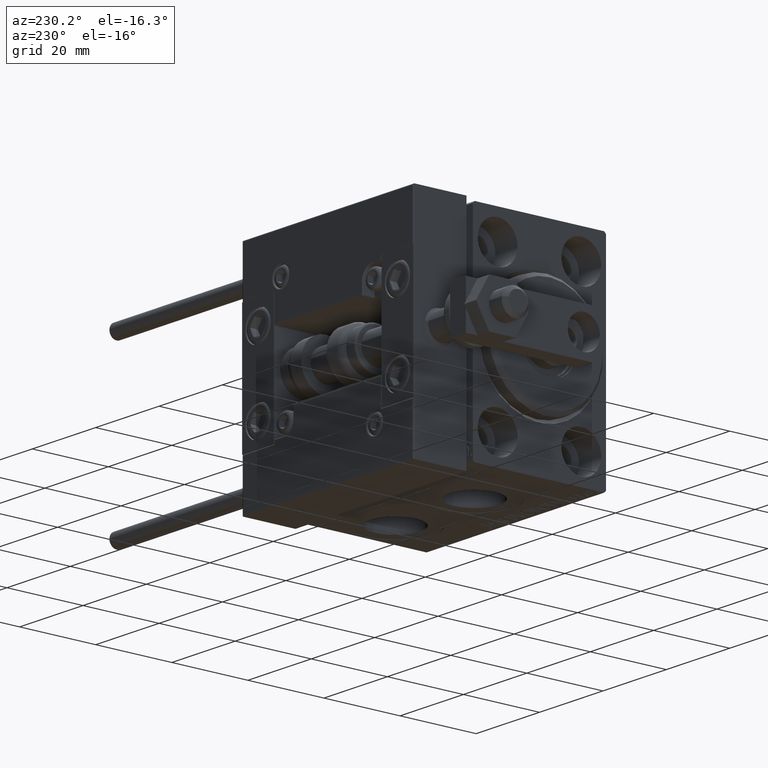
[diagram: clean part render]
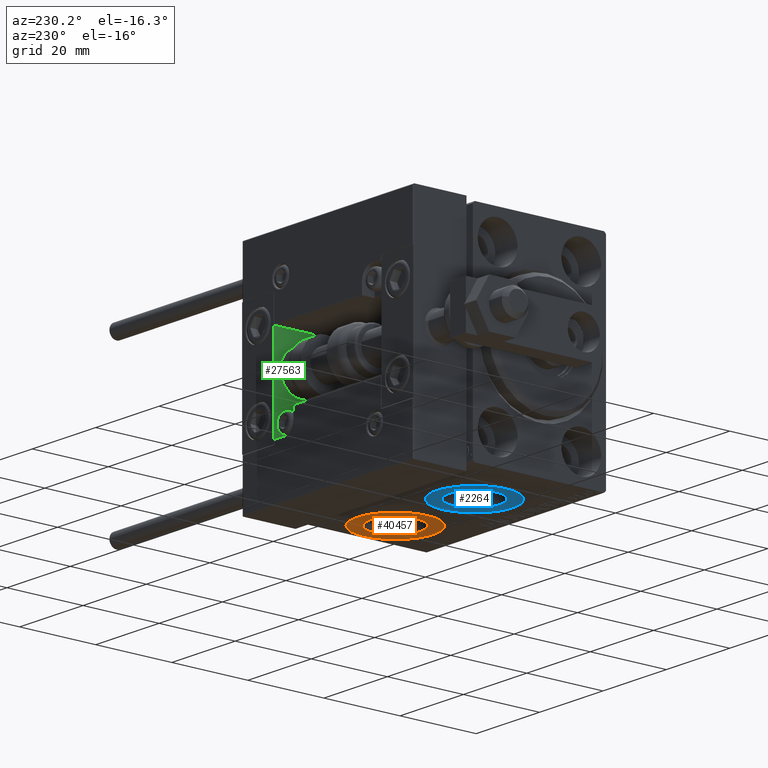
[diagram: same view with three faces highlighted in distinct colors, each labeled with its STEP entity id]
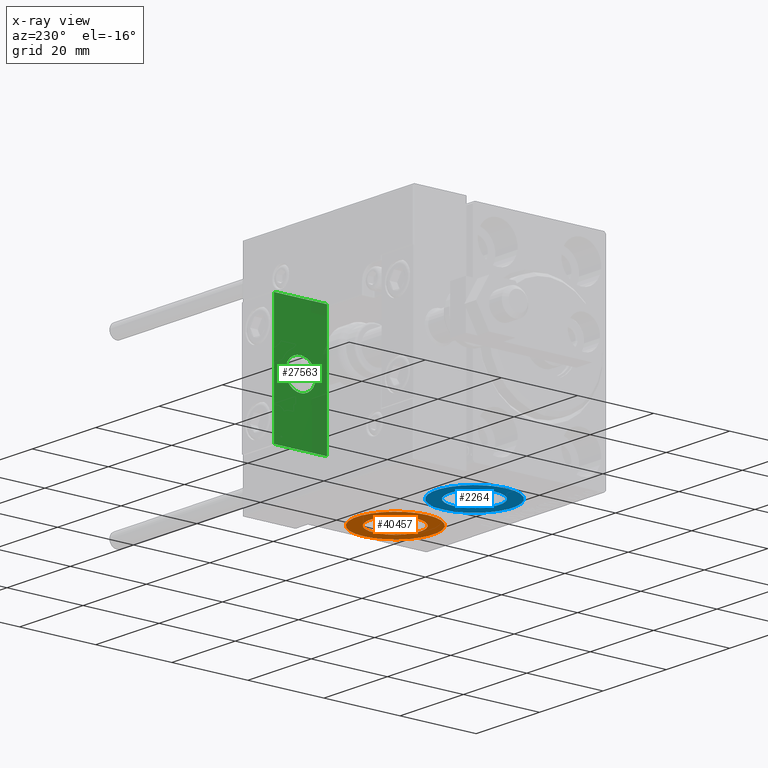
[diagram: x-ray of the same camera — body ghosted, the three highlighted faces saturated]
A machine part, auxiliary view with three faces highlighted in distinct colors.
The next image is the same camera in x-ray (body ghosted, the three faces saturated) — at least one of them is partly hidden behind the body in this view.
Their STEP definitions:

[orange] entity #40457 — the highlighted planar face has unit normal (0, 0, -1).
#1160 = VERTEX_POINT ( 'NONE', #16703 ) ;
#1393 = CARTESIAN_POINT ( 'NONE',  ( 35.50000000000000000, -5.788603209277299718E-15, -27.40000000000000568 ) ) ;
#1832 = CARTESIAN_POINT ( 'NONE',  ( 45.50000000000000000, -5.788603209277299718E-15, -27.40000000000000568 ) ) ;
#1897 = EDGE_LOOP ( 'NONE', ( #38972, #48840 ) ) ;
#2544 = DIRECTION ( 'NONE',  ( -1.000000000000000000, 0.000000000000000000, 0.000000000000000000 ) ) ;
#4636 = EDGE_CURVE ( 'NONE', #4761, #1160, #33065, .T. ) ;
#4679 = DIRECTION ( 'NONE',  ( 0.000000000000000000, 0.000000000000000000, -1.000000000000000000 ) ) ;
#4761 = VERTEX_POINT ( 'NONE', #1393 ) ;
#6704 = EDGE_CURVE ( 'NONE', #18894, #27133, #46014, .T. ) ;
#6826 = DIRECTION ( 'NONE',  ( -1.000000000000000000, 0.000000000000000000, 0.000000000000000000 ) ) ;
#8646 = AXIS2_PLACEMENT_3D ( 'NONE', #10131, #14234, #6826 ) ;
#10131 = CARTESIAN_POINT ( 'NONE',  ( 45.50000000000000000, -5.788603209277299718E-15, -27.40000000000000568 ) ) ;
#12817 = FACE_BOUND ( 'NONE', #1897, .T. ) ;
#14234 = DIRECTION ( 'NONE',  ( 0.000000000000000000, 0.000000000000000000, -1.000000000000000000 ) ) ;
#16703 = CARTESIAN_POINT ( 'NONE',  ( 55.50000000000000000, -4.563956410129945870E-15, -27.40000000000000568 ) ) ;
#17834 = DIRECTION ( 'NONE',  ( 0.000000000000000000, 0.000000000000000000, -1.000000000000000000 ) ) ;
#18894 = VERTEX_POINT ( 'NONE', #32113 ) ;
#20598 = AXIS2_PLACEMENT_3D ( 'NONE', #1832, #4679, #36507 ) ;
#22444 = CARTESIAN_POINT ( 'NONE',  ( 45.50000000000000000, -5.788603209277299718E-15, -27.40000000000000568 ) ) ;
#24079 = AXIS2_PLACEMENT_3D ( 'NONE', #30611, #30865, #46892 ) ;
#24916 = EDGE_CURVE ( 'NONE', #27133, #18894, #37234, .T. ) ;
#25157 = DIRECTION ( 'NONE',  ( 0.000000000000000000, 0.000000000000000000, -1.000000000000000000 ) ) ;
#26562 = EDGE_LOOP ( 'NONE', ( #48608, #41977 ) ) ;
#26821 = CARTESIAN_POINT ( 'NONE',  ( 38.91999999999999460, -5.788603209277299718E-15, -27.40000000000000568 ) ) ;
#27133 = VERTEX_POINT ( 'NONE', #26821 ) ;
#28625 = PLANE ( 'NONE',  #20598 ) ;
#30611 = CARTESIAN_POINT ( 'NONE',  ( 45.50000000000000000, -5.788603209277299718E-15, -27.40000000000000568 ) ) ;
#30865 = DIRECTION ( 'NONE',  ( 0.000000000000000000, 0.000000000000000000, -1.000000000000000000 ) ) ;
#31225 = AXIS2_PLACEMENT_3D ( 'NONE', #22444, #17834, #2544 ) ;
#32113 = CARTESIAN_POINT ( 'NONE',  ( 52.07999999999999829, -4.982785615438341465E-15, -27.40000000000000568 ) ) ;
#32376 = AXIS2_PLACEMENT_3D ( 'NONE', #44483, #25157, #36852 ) ;
#33065 = CIRCLE ( 'NONE', #8646, 10.00000000000000178 ) ;
#36507 = DIRECTION ( 'NONE',  ( -1.000000000000000000, 0.000000000000000000, -0.000000000000000000 ) ) ;
#36852 = DIRECTION ( 'NONE',  ( -1.000000000000000000, 0.000000000000000000, 0.000000000000000000 ) ) ;
#37234 = CIRCLE ( 'NONE', #32376, 6.580000000000002736 ) ;
#38972 = ORIENTED_EDGE ( 'NONE', *, *, #24916, .F. ) ;
#40457 = ADVANCED_FACE ( 'NONE', ( #12817, #44626 ), #28625, .T. ) ;
#41610 = EDGE_CURVE ( 'NONE', #1160, #4761, #45843, .T. ) ;
#41977 = ORIENTED_EDGE ( 'NONE', *, *, #41610, .T. ) ;
#44483 = CARTESIAN_POINT ( 'NONE',  ( 45.50000000000000000, -5.788603209277299718E-15, -27.40000000000000568 ) ) ;
#44626 = FACE_OUTER_BOUND ( 'NONE', #26562, .T. ) ;
#45843 = CIRCLE ( 'NONE', #31225, 10.00000000000000178 ) ;
#46014 = CIRCLE ( 'NONE', #24079, 6.580000000000002736 ) ;
#46892 = DIRECTION ( 'NONE',  ( -1.000000000000000000, 0.000000000000000000, 0.000000000000000000 ) ) ;
#48608 = ORIENTED_EDGE ( 'NONE', *, *, #4636, .T. ) ;
#48840 = ORIENTED_EDGE ( 'NONE', *, *, #6704, .F. ) ;

[blue] entity #2264 — the highlighted planar face has unit normal (0, 0, -1).
#1311 = EDGE_CURVE ( 'NONE', #31040, #6852, #50053, .T. ) ;
#2264 = ADVANCED_FACE ( 'NONE', ( #22218, #42056 ), #45624, .T. ) ;
#2319 = CARTESIAN_POINT ( 'NONE',  ( 0.000000000000000000, 0.000000000000000000, -27.40000000000000568 ) ) ;
#2650 = DIRECTION ( 'NONE',  ( 0.000000000000000000, 0.000000000000000000, -1.000000000000000000 ) ) ;
#3085 = DIRECTION ( 'NONE',  ( -1.000000000000000000, 0.000000000000000000, -0.000000000000000000 ) ) ;
#6622 = CIRCLE ( 'NONE', #15611, 6.580000000000002736 ) ;
#6852 = VERTEX_POINT ( 'NONE', #49117 ) ;
#9002 = EDGE_CURVE ( 'NONE', #6852, #31040, #43638, .T. ) ;
#9460 = AXIS2_PLACEMENT_3D ( 'NONE', #12507, #16580, #44752 ) ;
#11558 = CARTESIAN_POINT ( 'NONE',  ( 13.92000000000000171, -2.726986211408916281E-15, -27.40000000000000568 ) ) ;
#12507 = CARTESIAN_POINT ( 'NONE',  ( 20.50000000000000355, -2.726986211408916281E-15, -27.40000000000000568 ) ) ;
#12760 = EDGE_CURVE ( 'NONE', #23088, #48226, #13702, .T. ) ;
#13702 = CIRCLE ( 'NONE', #35701, 6.580000000000002736 ) ;
#13880 = EDGE_LOOP ( 'NONE', ( #45793, #47876 ) ) ;
#14387 = DIRECTION ( 'NONE',  ( -1.000000000000000000, 0.000000000000000000, 0.000000000000000000 ) ) ;
#14646 = DIRECTION ( 'NONE',  ( 0.000000000000000000, 0.000000000000000000, -1.000000000000000000 ) ) ;
#15287 = CARTESIAN_POINT ( 'NONE',  ( 27.08000000000000540, -1.921168617569958028E-15, -27.40000000000000568 ) ) ;
#15611 = AXIS2_PLACEMENT_3D ( 'NONE', #25528, #48688, #24790 ) ;
#16580 = DIRECTION ( 'NONE',  ( 0.000000000000000000, 0.000000000000000000, -1.000000000000000000 ) ) ;
#20760 = AXIS2_PLACEMENT_3D ( 'NONE', #22037, #2650, #33746 ) ;
#22037 = CARTESIAN_POINT ( 'NONE',  ( 20.50000000000000355, -2.726986211408916281E-15, -27.40000000000000568 ) ) ;
#22218 = FACE_BOUND ( 'NONE', #13880, .T. ) ;
#22933 = ORIENTED_EDGE ( 'NONE', *, *, #9002, .T. ) ;
#23088 = VERTEX_POINT ( 'NONE', #15287 ) ;
#24790 = DIRECTION ( 'NONE',  ( -1.000000000000000000, 0.000000000000000000, 0.000000000000000000 ) ) ;
#25362 = CARTESIAN_POINT ( 'NONE',  ( 20.50000000000000355, -2.726986211408916281E-15, -27.40000000000000568 ) ) ;
#25528 = CARTESIAN_POINT ( 'NONE',  ( 20.50000000000000355, -2.726986211408916281E-15, -27.40000000000000568 ) ) ;
#30239 = CARTESIAN_POINT ( 'NONE',  ( 10.50000000000000355, -2.726986211408916281E-15, -27.40000000000000568 ) ) ;
#31040 = VERTEX_POINT ( 'NONE', #30239 ) ;
#31529 = EDGE_LOOP ( 'NONE', ( #32993, #22933 ) ) ;
#32993 = ORIENTED_EDGE ( 'NONE', *, *, #1311, .T. ) ;
#33746 = DIRECTION ( 'NONE',  ( -1.000000000000000000, 0.000000000000000000, 0.000000000000000000 ) ) ;
#34180 = DIRECTION ( 'NONE',  ( 0.000000000000000000, 0.000000000000000000, -1.000000000000000000 ) ) ;
#34656 = AXIS2_PLACEMENT_3D ( 'NONE', #2319, #34180, #3085 ) ;
#35701 = AXIS2_PLACEMENT_3D ( 'NONE', #25362, #14646, #14387 ) ;
#37788 = EDGE_CURVE ( 'NONE', #48226, #23088, #6622, .T. ) ;
#42056 = FACE_OUTER_BOUND ( 'NONE', #31529, .T. ) ;
#43638 = CIRCLE ( 'NONE', #9460, 10.00000000000000000 ) ;
#44752 = DIRECTION ( 'NONE',  ( -1.000000000000000000, 0.000000000000000000, 0.000000000000000000 ) ) ;
#45624 = PLANE ( 'NONE',  #34656 ) ;
#45793 = ORIENTED_EDGE ( 'NONE', *, *, #37788, .F. ) ;
#47876 = ORIENTED_EDGE ( 'NONE', *, *, #12760, .F. ) ;
#48226 = VERTEX_POINT ( 'NONE', #11558 ) ;
#48688 = DIRECTION ( 'NONE',  ( 0.000000000000000000, 0.000000000000000000, -1.000000000000000000 ) ) ;
#49117 = CARTESIAN_POINT ( 'NONE',  ( 30.50000000000000711, -1.502339412261563419E-15, -27.40000000000000568 ) ) ;
#50053 = CIRCLE ( 'NONE', #20760, 10.00000000000000000 ) ;

[green] entity #27563 — the highlighted planar face has unit normal (-1, 0, 0).
#152 = ORIENTED_EDGE ( 'NONE', *, *, #11300, .T. ) ;
#473 = EDGE_CURVE ( 'NONE', #3932, #20882, #14180, .T. ) ;
#871 = VECTOR ( 'NONE', #37795, 1000.000000000000000 ) ;
#3164 = LINE ( 'NONE', #14888, #27041 ) ;
#3308 = DIRECTION ( 'NONE',  ( -1.000000000000000000, 0.000000000000000000, -0.000000000000000000 ) ) ;
#3418 = DIRECTION ( 'NONE',  ( 0.000000000000000000, 0.000000000000000000, -1.000000000000000000 ) ) ;
#3932 = VERTEX_POINT ( 'NONE', #28421 ) ;
#5000 = VERTEX_POINT ( 'NONE', #46722 ) ;
#5868 = CARTESIAN_POINT ( 'NONE',  ( 0.000000000000000000, -7.000000000000000000, 15.99999999999999289 ) ) ;
#5908 = EDGE_LOOP ( 'NONE', ( #38685, #23148 ) ) ;
#8035 = CIRCLE ( 'NONE', #39745, 4.000000000000000000 ) ;
#8330 = ORIENTED_EDGE ( 'NONE', *, *, #48303, .T. ) ;
#10513 = LINE ( 'NONE', #45681, #871 ) ;
#11300 = EDGE_CURVE ( 'NONE', #20870, #5000, #11654, .T. ) ;
#11654 = LINE ( 'NONE', #19332, #25840 ) ;
#13379 = AXIS2_PLACEMENT_3D ( 'NONE', #32617, #32370, #48628 ) ;
#14180 = CIRCLE ( 'NONE', #13379, 4.000000000000000000 ) ;
#14888 = CARTESIAN_POINT ( 'NONE',  ( 0.000000000000000000, 7.000000000000000000, 15.99999999999999289 ) ) ;
#15283 = PLANE ( 'NONE',  #47139 ) ;
#15463 = EDGE_CURVE ( 'NONE', #34716, #5000, #29092, .T. ) ;
#17086 = CARTESIAN_POINT ( 'NONE',  ( 0.000000000000000000, 4.898587196589412829E-16, -4.000000000000000000 ) ) ;
#18119 = EDGE_LOOP ( 'NONE', ( #26857, #37144, #8330, #152 ) ) ;
#19332 = CARTESIAN_POINT ( 'NONE',  ( 0.000000000000000000, 7.000000000000000000, -16.00000000000000711 ) ) ;
#19507 = CARTESIAN_POINT ( 'NONE',  ( 0.000000000000000000, -7.000000000000000000, 15.99999999999999289 ) ) ;
#19823 = VERTEX_POINT ( 'NONE', #32608 ) ;
#20870 = VERTEX_POINT ( 'NONE', #26834 ) ;
#20882 = VERTEX_POINT ( 'NONE', #17086 ) ;
#23148 = ORIENTED_EDGE ( 'NONE', *, *, #26571, .F. ) ;
#25840 = VECTOR ( 'NONE', #42227, 1000.000000000000000 ) ;
#26571 = EDGE_CURVE ( 'NONE', #20882, #3932, #8035, .T. ) ;
#26834 = CARTESIAN_POINT ( 'NONE',  ( 0.000000000000000000, 7.000000000000000000, -16.00000000000000711 ) ) ;
#26857 = ORIENTED_EDGE ( 'NONE', *, *, #15463, .F. ) ;
#27041 = VECTOR ( 'NONE', #3418, 1000.000000000000000 ) ;
#27563 = ADVANCED_FACE ( 'NONE', ( #37949, #30320 ), #15283, .T. ) ;
#28421 = CARTESIAN_POINT ( 'NONE',  ( 0.000000000000000000, 0.000000000000000000, 4.000000000000000000 ) ) ;
#28558 = CARTESIAN_POINT ( 'NONE',  ( 0.000000000000000000, 0.000000000000000000, 0.000000000000000000 ) ) ;
#29092 = LINE ( 'NONE', #5868, #44677 ) ;
#30320 = FACE_OUTER_BOUND ( 'NONE', #18119, .T. ) ;
#30330 = DIRECTION ( 'NONE',  ( -0.000000000000000000, 0.000000000000000000, 1.000000000000000000 ) ) ;
#30379 = EDGE_CURVE ( 'NONE', #19823, #34716, #10513, .T. ) ;
#30833 = CARTESIAN_POINT ( 'NONE',  ( 0.000000000000000000, 0.000000000000000000, 0.000000000000000000 ) ) ;
#32370 = DIRECTION ( 'NONE',  ( -1.000000000000000000, -0.000000000000000000, -0.000000000000000000 ) ) ;
#32417 = DIRECTION ( 'NONE',  ( 0.000000000000000000, 0.000000000000000000, -1.000000000000000000 ) ) ;
#32608 = CARTESIAN_POINT ( 'NONE',  ( 0.000000000000000000, 7.000000000000000000, 15.99999999999999289 ) ) ;
#32617 = CARTESIAN_POINT ( 'NONE',  ( 0.000000000000000000, 0.000000000000000000, 0.000000000000000000 ) ) ;
#34716 = VERTEX_POINT ( 'NONE', #19507 ) ;
#36437 = DIRECTION ( 'NONE',  ( 0.000000000000000000, 0.000000000000000000, 1.000000000000000000 ) ) ;
#37144 = ORIENTED_EDGE ( 'NONE', *, *, #30379, .F. ) ;
#37795 = DIRECTION ( 'NONE',  ( 0.000000000000000000, -1.000000000000000000, 0.000000000000000000 ) ) ;
#37949 = FACE_BOUND ( 'NONE', #5908, .T. ) ;
#38685 = ORIENTED_EDGE ( 'NONE', *, *, #473, .F. ) ;
#39745 = AXIS2_PLACEMENT_3D ( 'NONE', #28558, #44312, #36437 ) ;
#42227 = DIRECTION ( 'NONE',  ( 0.000000000000000000, -1.000000000000000000, 0.000000000000000000 ) ) ;
#44312 = DIRECTION ( 'NONE',  ( -1.000000000000000000, -0.000000000000000000, -0.000000000000000000 ) ) ;
#44677 = VECTOR ( 'NONE', #32417, 1000.000000000000000 ) ;
#45681 = CARTESIAN_POINT ( 'NONE',  ( 0.000000000000000000, 7.000000000000000000, 15.99999999999999289 ) ) ;
#46722 = CARTESIAN_POINT ( 'NONE',  ( 0.000000000000000000, -7.000000000000000000, -16.00000000000000711 ) ) ;
#47139 = AXIS2_PLACEMENT_3D ( 'NONE', #30833, #3308, #30330 ) ;
#48303 = EDGE_CURVE ( 'NONE', #19823, #20870, #3164, .T. ) ;
#48628 = DIRECTION ( 'NONE',  ( 0.000000000000000000, 0.000000000000000000, 1.000000000000000000 ) ) ;